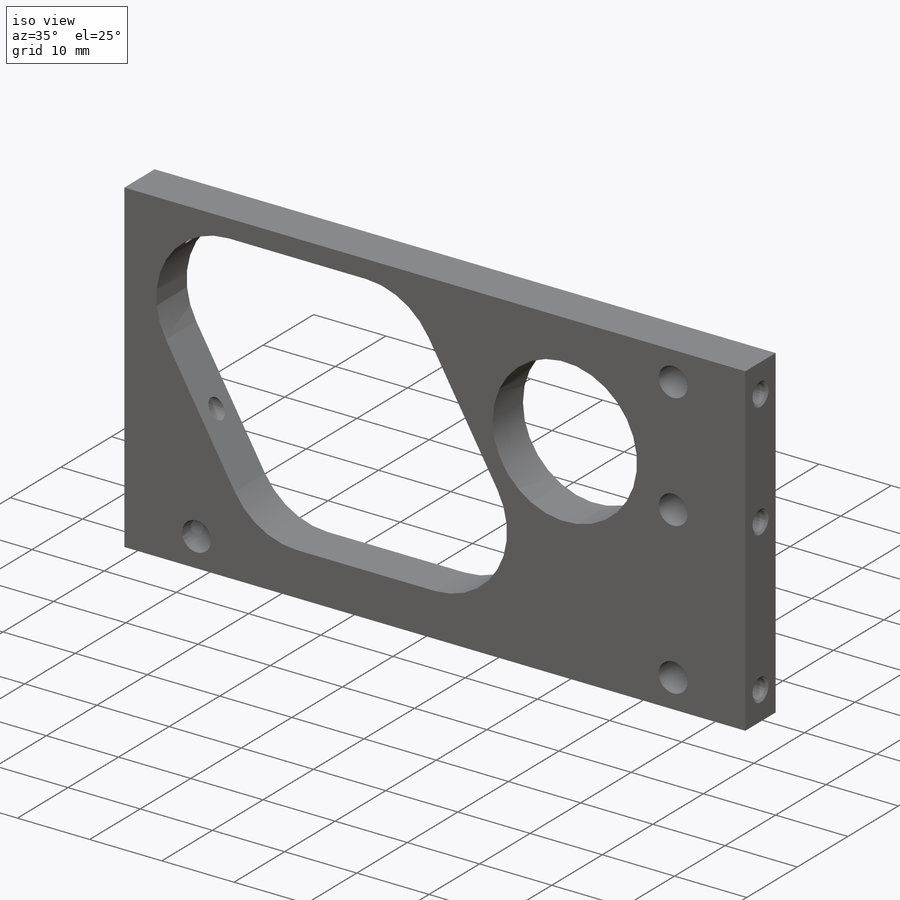
[diagram: iso view]
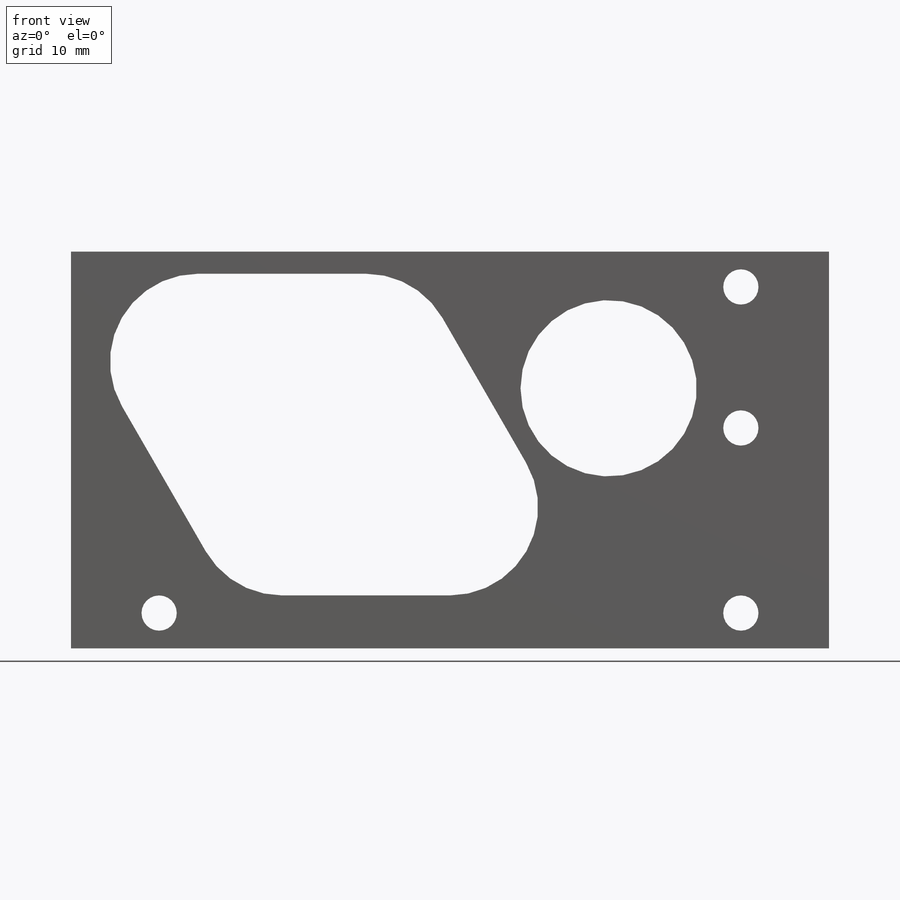
[diagram: front view]
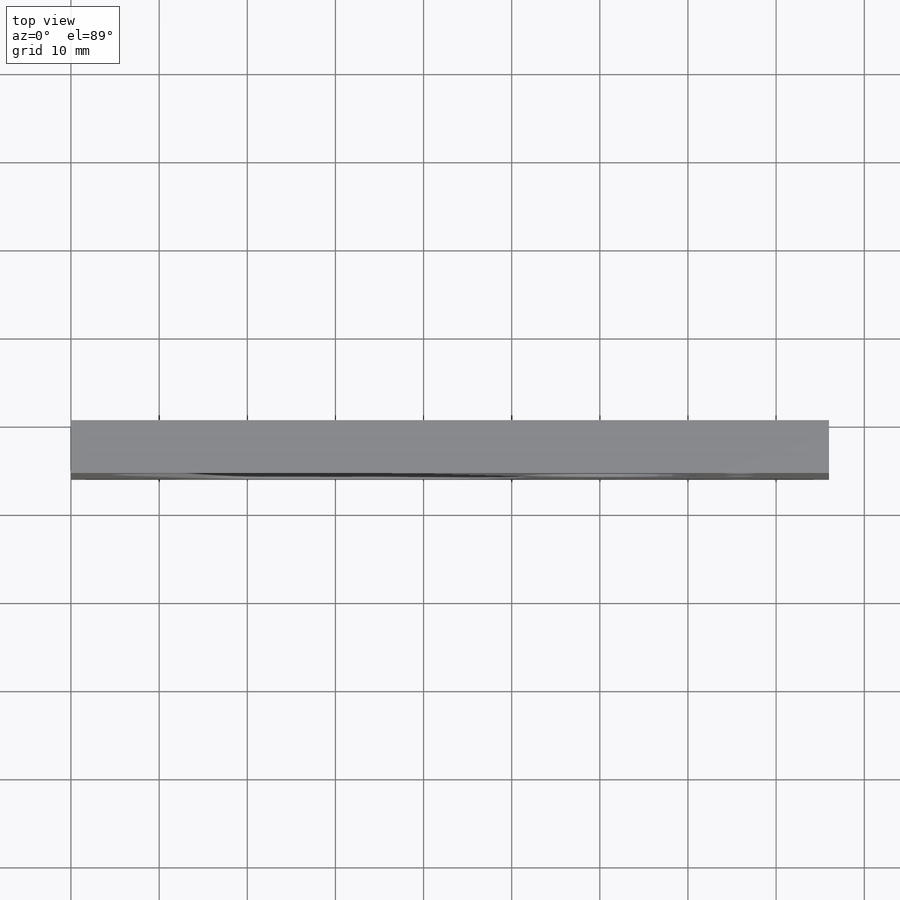
[diagram: top view]
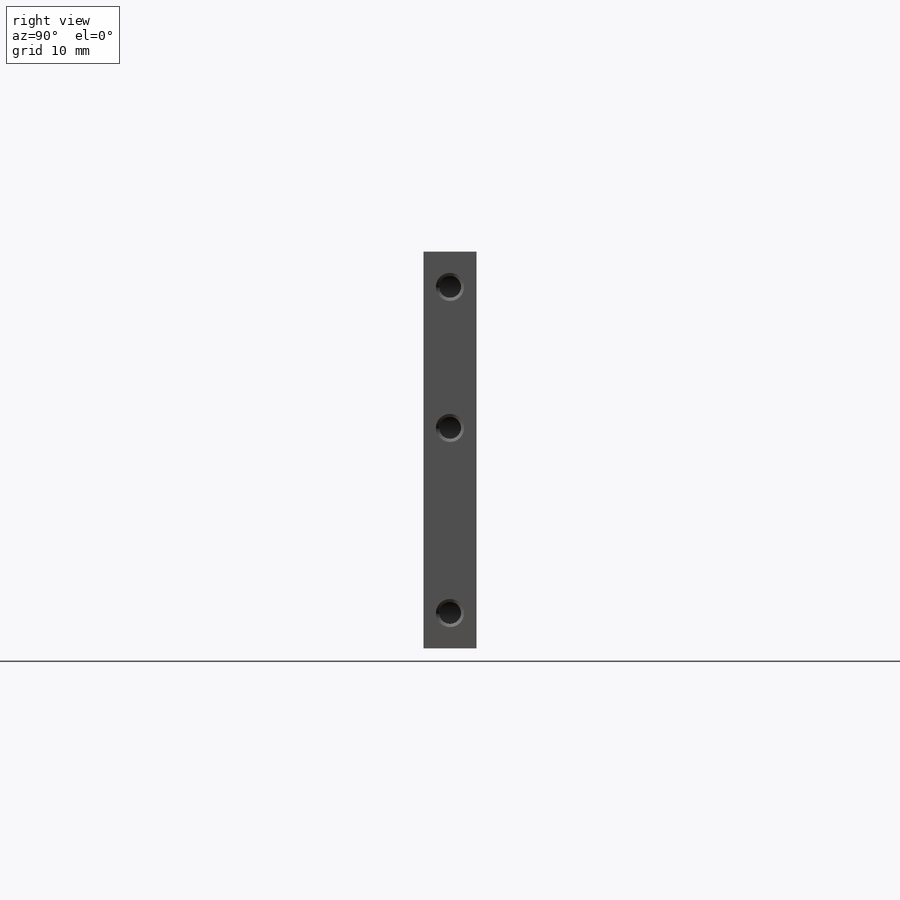
[diagram: right view]
SOLIDWORKS PART (.sldprt)
format: sldprt  version: not decoded by parser v0  size: 368,128 bytes
history: native  units: mm
features: sketch x7, thread x6, plane x3, cut_extrude x2, hole x2, material x1, extrude x1 (+13 scaffold rows collapsed)
feature tree (35):
  scaffold x13  (default folders/planes/origin — collapsed)
  material  "2024-T4"
  plane  "Спереди"
  plane  "Сверху"
  plane  "Справа"
  sketch  "Эскиз1"  dims[D1=86.0mm D2=45.0mm]
  extrude  "Бобышка-Вытянуть1"  Depth=6mm
  sketch  "Эскиз2"  dims[c1.D1=10.0mm c1.D2=~18.143616mm c2.D2=60.0deg c2.D3=8.5mm c2.D4=36.5mm c2.D5=36.5mm c2.D6=16.0mm c2.D7=12.0mm c3.D6=4.0mm c3.D8=53.0mm c3.D3=2.5mm]
  cut_extrude  "Вырез-Вытянуть3"  [1 undecoded]
  sketch  "Эскиз8"  dims[c1.D1=20.0mm c1.D3=24.0mm c1.D4=4.0mm c1.D5=4.0mm c1.D6=4.0mm c1.D7=~4.20944mm c1.D8=4.0mm c1.D9=4.0mm c1.D2=15.5mm c2.D3=25.0mm c2.D5=10.0mm c2.D6=4.0mm c2.D7=10.0mm c2.D8=21.0mm c2.D9=16.0mm]
  cut_extrude  "Вырез-Вытянуть5"  [1 undecoded]
  hole  "Отверстие обработанное метчиком M31"  [1 undecoded]
  sketch  "Эскиз5"  dims[c1.D1=3.0mm c1.D2=4.0mm c1.D3=28.0mm c1.D4=4.0mm c2.D3=15.0mm c2.D2=28.0mm c2.D1=3.0mm c3.D2=5.0mm]
  sketch  "Эскиз4"  dims[hole-wizard template sketch: 55 standard entries collapsed; hole parameters kept: c17.Глубина проходного сверла=~10.668385mm c17.Диаметр передней зенковки=3.2mm c17.D4=~3.666174mm c17.Угол передней зенковки=110.0deg]
  thread  "Отверстие резьбы1"  Diameter=3mm  [1 undecoded]
  thread  "Отверстие резьбы2"  Diameter=3mm  [1 undecoded]
  thread  "Отверстие резьбы3"  Diameter=3mm  [1 undecoded]
  hole  "Отверстие обработанное метчиком M32"  [1 undecoded]
  sketch  "Эскиз7"  dims[c1.D1=4.0mm c1.D2=4.0mm c1.D3=3.0mm c2.D1=37.0mm c2.D4=21.0mm]
  sketch  "Эскиз6"  dims[hole-wizard template sketch: 55 standard entries collapsed; hole parameters kept: c17.Глубина проходного сверла=8.0mm c17.Диаметр передней зенковки=3.2mm c17.D4=~3.666174mm c17.Угол передней зенковки=110.0deg]
  thread  "Отверстие резьбы4"  Diameter=3mm  [1 undecoded]
  thread  "Отверстие резьбы5"  Diameter=3mm  [1 undecoded]
  thread  "Отверстие резьбы6"  Diameter=3mm  [1 undecoded]
decode coverage: 14 of 18 modeling features carry decoded parameters
note: ~ marks probable driven/reference dimensions
note: 10 parameter values undecoded
summary: no parameter record found for 4 features
note: suppression state not decoded; provenance and decode notes live in map.json
